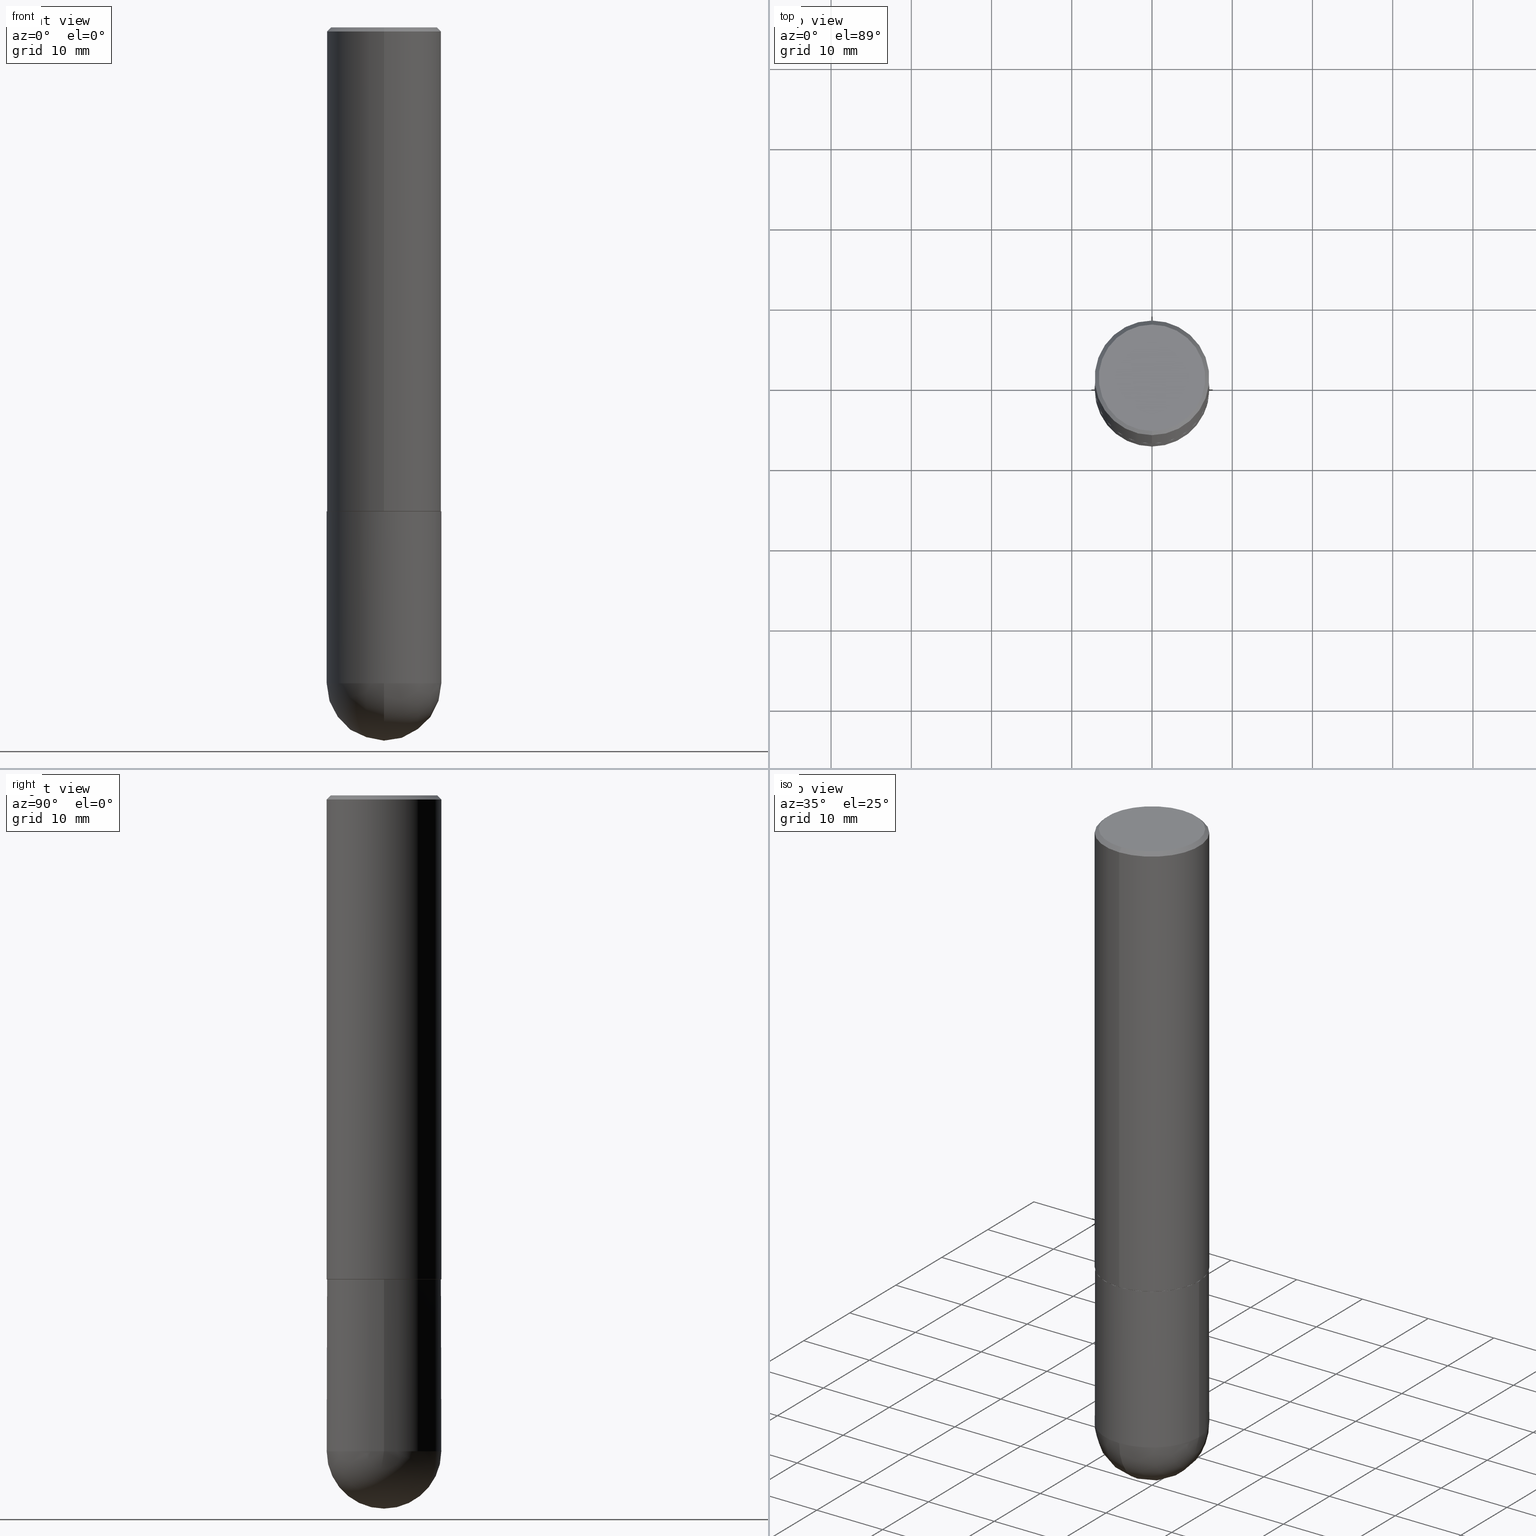
[diagram: canonical four-view strip — front | top / right | iso, engineering-drawing reading convention]
A machine part, canonical four-view strip (front | top / right | iso — engineering-drawing reading convention). The complete STEP part file that produces these views, byte-faithful:
ISO-10303-21;
HEADER;
FILE_DESCRIPTION (( 'STEP AP203' ),
    '1' );
FILE_NAME ('30937.STEP',
    '2024-02-21T16:46:13',
    ( '' ),
    ( '' ),
    'SwSTEP 2.0',
    'SolidWorks 2023',
    '' );
FILE_SCHEMA (( 'CONFIG_CONTROL_DESIGN' ));
ENDSEC;

DATA;
#1 = CARTESIAN_POINT ( 'NONE',  ( -1.963958253099205714E-15, -0.2812500000000085487, -2.373999999999998334 ) ) ;
#2 = VERTEX_POINT ( 'NONE', #383 ) ;
#3 = DIRECTION ( 'NONE',  ( -6.982962677686265133E-15, -1.000000000000000000, 3.885294924322504533E-15 ) ) ;
#4 = ORIENTED_EDGE ( 'NONE', *, *, #10, .T. ) ;
#5 = VERTEX_POINT ( 'NONE', #91 ) ;
#6 = FACE_OUTER_BOUND ( 'NONE', #216, .T. ) ;
#7 = CALENDAR_DATE ( 2024, 21, 2 ) ;
#8 = EDGE_CURVE ( 'NONE', #71, #2, #405, .T. ) ;
#9 = AXIS2_PLACEMENT_3D ( 'NONE', #369, #267, #172 ) ;
#10 = EDGE_CURVE ( 'NONE', #56, #35, #275, .T. ) ;
#11 = CALENDAR_DATE ( 2024, 21, 2 ) ;
#12 = CARTESIAN_POINT ( 'NONE',  ( 0.000000000000000000, 0.000000000000000000, 0.000000000000000000 ) ) ;
#13 = PERSON_AND_ORGANIZATION ( #332, #87 ) ;
#14 = PERSON_AND_ORGANIZATION ( #332, #87 ) ;
#15 = ORIENTED_EDGE ( 'NONE', *, *, #55, .F. ) ;
#16 = AXIS2_PLACEMENT_3D ( 'NONE', #408, #352, #119 ) ;
#17 = PLANE ( 'NONE',  #303 ) ;
#18 = DIRECTION ( 'NONE',  ( -2.445468806185136597E-29, 3.491481338843145583E-15, 1.000000000000000000 ) ) ;
#19 = APPROVAL_ROLE ( '' ) ;
#20 = CARTESIAN_POINT ( 'NONE',  ( 4.891942156115939858E-31, -6.981524113867461777E-17, -0.02000000000000006287 ) ) ;
#21 = ADVANCED_FACE ( 'NONE', ( #152 ), #223, .F. ) ;
#22 = AXIS2_PLACEMENT_3D ( 'NONE', #157, #284, #3 ) ;
#23 = ADVANCED_FACE ( 'NONE', ( #92 ), #89, .T. ) ;
#24 = ORIENTED_EDGE ( 'NONE', *, *, #254, .T. ) ;
#25 = DIRECTION ( 'NONE',  ( -2.445971078057962310E-29, 3.490762056933719721E-15, 1.000000000000000000 ) ) ;
#26 = CARTESIAN_POINT ( 'NONE',  ( 5.807988414689698296E-29, -8.292268179752468540E-15, -2.374999999999999556 ) ) ;
#27 = DIRECTION ( 'NONE',  ( -2.445971078057962310E-29, 3.490762056933719721E-15, 1.000000000000000000 ) ) ;
#28 = ORIENTED_EDGE ( 'NONE', *, *, #261, .F. ) ;
#29 = EDGE_LOOP ( 'NONE', ( #155, #104, #322, #98 ) ) ;
#30 = DIRECTION ( 'NONE',  ( -2.445971078057962310E-29, 3.490762056933719721E-15, 1.000000000000000000 ) ) ;
#31 = ADVANCED_FACE ( 'NONE', ( #311 ), #319, .T. ) ;
#32 = CIRCLE ( 'NONE', #136, 0.2812499999999999445 ) ;
#33 = ORIENTED_EDGE ( 'NONE', *, *, #8, .F. ) ;
#34 = ORIENTED_EDGE ( 'NONE', *, *, #194, .T. ) ;
#35 = VERTEX_POINT ( 'NONE', #349 ) ;
#36 = SECURITY_CLASSIFICATION_LEVEL ( 'unclassified' ) ;
#37 = ORIENTED_EDGE ( 'NONE', *, *, #186, .T. ) ;
#38 = DATE_AND_TIME ( #134, #353 ) ;
#39 = PERSON_AND_ORGANIZATION ( #332, #87 ) ;
#40 = CONICAL_SURFACE ( 'NONE', #103, 0.2802499999999999991, 0.7853981633973970977 ) ;
#41 = AXIS2_PLACEMENT_3D ( 'NONE', #246, #314, #343 ) ;
#42 = PRODUCT ( '30937', '30937', '', ( #169 ) ) ;
#43 = APPROVAL_STATUS ( 'not_yet_approved' ) ;
#44 = ADVANCED_BREP_SHAPE_REPRESENTATION ( '30937', ( #64, #344, #264 ), #323 ) ;
#45 = APPLICATION_PROTOCOL_DEFINITION ( 'international standard', 'config_control_design', 1994, #295 ) ;
#46 = ORIENTED_EDGE ( 'NONE', *, *, #171, .T. ) ;
#47 = DIRECTION ( 'NONE',  ( 6.982962677686265133E-15, 1.000000000000000000, 0.000000000000000000 ) ) ;
#48 = DATE_AND_TIME ( #7, #65 ) ;
#49 = DIRECTION ( 'NONE',  ( -6.982962677686265922E-15, -1.000000000000000000, 3.899158599342391639E-15 ) ) ;
#50 = AXIS2_PLACEMENT_3D ( 'NONE', #277, #309, #252 ) ;
#51 = DIRECTION ( 'NONE',  ( -2.445468806185136597E-29, 3.491481338843145583E-15, 1.000000000000000000 ) ) ;
#52 = CIRCLE ( 'NONE', #121, 0.2812500000000000555 ) ;
#53 = DIRECTION ( 'NONE',  ( -2.445468806185136597E-29, 3.491481338843145583E-15, 1.000000000000000000 ) ) ;
#54 = CARTESIAN_POINT ( 'NONE',  ( 5.809181310387659224E-29, -8.290559885217581626E-15, -2.374999999999999556 ) ) ;
#55 = EDGE_CURVE ( 'NONE', #100, #357, #412, .T. ) ;
#56 = VERTEX_POINT ( 'NONE', #214 ) ;
#57 = CARTESIAN_POINT ( 'NONE',  ( 1.963958253099340610E-15, 0.2812499999999886757, -3.218750000000000888 ) ) ;
#58 = DIRECTION ( 'NONE',  ( -2.445468806185136597E-29, 3.491481338843145583E-15, 1.000000000000000000 ) ) ;
#59 = CARTESIAN_POINT ( 'NONE',  ( 5.806735339309601077E-29, -8.287069123160647874E-15, -2.373999999999999222 ) ) ;
#60 = CARTESIAN_POINT ( 'NONE',  ( -1.860910081895526737E-15, -0.2612499999999998157, 1.009949462247405625E-15 ) ) ;
#61 = VERTEX_POINT ( 'NONE', #188 ) ;
#62 = DIRECTION ( 'NONE',  ( -2.445971078057961469E-29, 3.490762056933720116E-15, 1.000000000000000000 ) ) ;
#63 = DIRECTION ( 'NONE',  ( -2.445468806185136877E-29, 3.491481338843145188E-15, 1.000000000000000000 ) ) ;
#64 = MANIFOLD_SOLID_BREP ( 'Body-Move/Copy2[1]', #132 ) ;
#65 = LOCAL_TIME ( 11, 46, 13.00000000000000000, #292 ) ;
#66 = CARTESIAN_POINT ( 'NONE',  ( 8.240046819675677659E-29, -1.267714545847805119E-14, -3.500000000000000000 ) ) ;
#67 = CC_DESIGN_PERSON_AND_ORGANIZATION_ASSIGNMENT ( #360, #195, ( #137 ) ) ;
#68 = DIRECTION ( 'NONE',  ( 6.982962677686265922E-15, 1.000000000000000000, -3.885294924322502955E-15 ) ) ;
#69 = ORIENTED_EDGE ( 'NONE', *, *, #261, .T. ) ;
#70 = DIRECTION ( 'NONE',  ( -4.937700262164294818E-15, -0.7071067811865088260, 0.7071067811865862085 ) ) ;
#71 = VERTEX_POINT ( 'NONE', #66 ) ;
#72 = VERTEX_POINT ( 'NONE', #57 ) ;
#73 = CIRCLE ( 'NONE', #120, 0.2812500000000003331 ) ;
#74 = EDGE_CURVE ( 'NONE', #5, #164, #347, .T. ) ;
#75 = CLOSED_SHELL ( 'NONE', ( #158, #31, #318, #274, #101, #339, #209, #21 ) ) ;
#76 = VECTOR ( 'NONE', #63, 39.37007874015748143 ) ;
#77 = DIRECTION ( 'NONE',  ( -2.445971078057962310E-29, 3.490762056933719721E-15, 1.000000000000000000 ) ) ;
#78 = PERSON_AND_ORGANIZATION_ROLE ( 'classification_officer' ) ;
#79 = FACE_OUTER_BOUND ( 'NONE', #290, .T. ) ;
#80 = CARTESIAN_POINT ( 'NONE',  ( -1.929515061873242463E-15, -0.2812500000000000555, -0.01999999999999908101 ) ) ;
#81 = AXIS2_PLACEMENT_3D ( 'NONE', #391, #244, #378 ) ;
#82 = EDGE_CURVE ( 'NONE', #61, #210, #206, .T. ) ;
#83 = FACE_OUTER_BOUND ( 'NONE', #296, .T. ) ;
#84 = ORIENTED_EDGE ( 'NONE', *, *, #240, .T. ) ;
#85 = ORIENTED_EDGE ( 'NONE', *, *, #215, .F. ) ;
#86 = AXIS2_PLACEMENT_3D ( 'NONE', #54, #77, #201 ) ;
#87 = ORGANIZATION ( 'UNSPECIFIED', 'UNSPECIFIED', '' ) ;
#88 = CARTESIAN_POINT ( 'NONE',  ( 1.894128626322399214E-15, 0.2612499999999998157, -8.139737125004617927E-16 ) ) ;
#89 = SPHERICAL_SURFACE ( 'NONE', #173, 0.2812500000000003331 ) ;
#90 = EDGE_LOOP ( 'NONE', ( #390, #24, #46, #193 ) ) ;
#91 = CARTESIAN_POINT ( 'NONE',  ( -0.2812500000000000555, -7.766835425251639371E-15, -3.218749999999999556 ) ) ;
#92 = FACE_OUTER_BOUND ( 'NONE', #161, .T. ) ;
#93 = DESIGN_CONTEXT ( 'detailed design', #279, 'design' ) ;
#94 = CC_DESIGN_PERSON_AND_ORGANIZATION_ASSIGNMENT ( #300, #78, ( #232 ) ) ;
#95 = AXIS2_PLACEMENT_3D ( 'NONE', #59, #174, #217 ) ;
#96 = ORIENTED_EDGE ( 'NONE', *, *, #107, .T. ) ;
#97 = VERTEX_POINT ( 'NONE', #60 ) ;
#98 = ORIENTED_EDGE ( 'NONE', *, *, #171, .F. ) ;
#99 = LINE ( 'NONE', #128, #146 ) ;
#100 = VERTEX_POINT ( 'NONE', #181 ) ;
#101 = ADVANCED_FACE ( 'NONE', ( #251 ), #124, .T. ) ;
#102 = DIRECTION ( 'NONE',  ( 6.982962677686266711E-15, 1.000000000000000000, -3.490694658571003593E-15 ) ) ;
#103 = AXIS2_PLACEMENT_3D ( 'NONE', #243, #226, #320 ) ;
#104 = ORIENTED_EDGE ( 'NONE', *, *, #395, .T. ) ;
#105 = DIRECTION ( 'NONE',  ( 1.000000000000000000, 0.000000000000000000, 0.000000000000000000 ) ) ;
#106 = LENGTH_MEASURE_WITH_UNIT ( LENGTH_MEASURE( 0.02539999999999999897 ), #304 );
#107 = EDGE_CURVE ( 'NONE', #357, #164, #373, .T. ) ;
#108 = CARTESIAN_POINT ( 'NONE',  ( 7.871352719908407300E-29, -1.123820555940137375E-14, -3.218749999999999556 ) ) ;
#109 = COORDINATED_UNIVERSAL_TIME_OFFSET ( 5, 0, .BEHIND. ) ;
#110 = ORIENTED_EDGE ( 'NONE', *, *, #288, .F. ) ;
#111 = DIRECTION ( 'NONE',  ( -2.445468806185136597E-29, 3.491481338843145583E-15, 1.000000000000000000 ) ) ;
#112 = DATE_AND_TIME ( #402, #126 ) ;
#113 = DATE_AND_TIME ( #145, #248 ) ;
#114 = CARTESIAN_POINT ( 'NONE',  ( 7.540232941994521053E-29, -1.171238792754142562E-14, -3.218749999999999556 ) ) ;
#115 = CIRCLE ( 'NONE', #305, 0.2812500000000000555 ) ;
#116 = ORIENTED_EDGE ( 'NONE', *, *, #107, .F. ) ;
#117 = CC_DESIGN_DATE_AND_TIME_ASSIGNMENT ( #48, #229, ( #232 ) ) ;
#118 = FACE_OUTER_BOUND ( 'NONE', #29, .T. ) ;
#119 = DIRECTION ( 'NONE',  ( 6.982962677686265922E-15, 1.000000000000000000, -3.490762056933720116E-15 ) ) ;
#120 = AXIS2_PLACEMENT_3D ( 'NONE', #114, #175, #47 ) ;
#121 = AXIS2_PLACEMENT_3D ( 'NONE', #108, #260, #205 ) ;
#122 = CYLINDRICAL_SURFACE ( 'NONE', #197, 0.2812500000000000555 ) ;
#123 = CARTESIAN_POINT ( 'NONE',  ( 0.2812500000000000555, -1.963958253099262907E-15, 1.371424718192607012E-29 ) ) ;
#124 = CYLINDRICAL_SURFACE ( 'NONE', #191, 0.2812500000000001110 ) ;
#125 = DIRECTION ( 'NONE',  ( -2.445971078057962310E-29, 3.490762056933720116E-15, 1.000000000000000000 ) ) ;
#126 = LOCAL_TIME ( 11, 46, 13.00000000000000000, #109 ) ;
#127 = EDGE_LOOP ( 'NONE', ( #333, #4, #282, #348 ) ) ;
#128 = CARTESIAN_POINT ( 'NONE',  ( -1.956975290421518122E-15, -0.2802500000000083258, -2.374999999999998668 ) ) ;
#129 = ORIENTED_EDGE ( 'NONE', *, *, #368, .T. ) ;
#130 = ORIENTED_EDGE ( 'NONE', *, *, #139, .T. ) ;
#131 = CARTESIAN_POINT ( 'NONE',  ( 4.891942156115939858E-31, -6.981524113867461777E-17, -0.02000000000000006287 ) ) ;
#132 = CLOSED_SHELL ( 'NONE', ( #256, #316, #23, #245, #376 ) ) ;
#133 = EDGE_LOOP ( 'NONE', ( #406, #355 ) ) ;
#134 = CALENDAR_DATE ( 2024, 21, 2 ) ;
#135 = CARTESIAN_POINT ( 'NONE',  ( 0.2812500000000000000, -1.025622643285173184E-14, -2.374999999999999556 ) ) ;
#136 = AXIS2_PLACEMENT_3D ( 'NONE', #20, #372, #266 ) ;
#137 = PRODUCT_DEFINITION_FORMATION_WITH_SPECIFIED_SOURCE ( 'ANY', '', #42, .NOT_KNOWN. ) ;
#138 = EDGE_LOOP ( 'NONE', ( #110, #385, #361, #34 ) ) ;
#139 = EDGE_CURVE ( 'NONE', #97, #270, #230, .T. ) ;
#140 = PERSON_AND_ORGANIZATION_ROLE ( 'creator' ) ;
#141 = LOCAL_TIME ( 11, 46, 13.00000000000000000, #294 ) ;
#142 = FACE_OUTER_BOUND ( 'NONE', #133, .T. ) ;
#143 = EDGE_CURVE ( 'NONE', #270, #97, #220, .T. ) ;
#144 = CARTESIAN_POINT ( 'NONE',  ( 5.809181310387659224E-29, -8.290559885217581626E-15, -2.374999999999999556 ) ) ;
#145 = CALENDAR_DATE ( 2024, 21, 2 ) ;
#146 = VECTOR ( 'NONE', #70, 39.37007874015748143 ) ;
#147 = CC_DESIGN_APPROVAL ( #176, ( #283 ) ) ;
#148 = DIMENSIONAL_EXPONENTS ( 1.000000000000000000, 0.000000000000000000, 0.000000000000000000, 0.000000000000000000, 0.000000000000000000, 0.000000000000000000, 0.000000000000000000 ) ;
#149 = VERTEX_POINT ( 'NONE', #1 ) ;
#150 = CARTESIAN_POINT ( 'NONE',  ( 5.807988414689698296E-29, -8.292268179752468540E-15, -2.374999999999999556 ) ) ;
#151 = CARTESIAN_POINT ( 'NONE',  ( -1.929515061873242463E-15, -0.2812500000000000555, -0.01999999999999908101 ) ) ;
#152 = FACE_OUTER_BOUND ( 'NONE', #351, .T. ) ;
#153 = ORIENTED_EDGE ( 'NONE', *, *, #143, .T. ) ;
#154 = DIRECTION ( 'NONE',  ( -2.445468806185136597E-29, 3.491481338843145583E-15, 1.000000000000000000 ) ) ;
#155 = ORIENTED_EDGE ( 'NONE', *, *, #82, .T. ) ;
#156 = DIRECTION ( 'NONE',  ( -1.000000000000000000, 6.982962677686265922E-15, -4.883557194083112901E-29 ) ) ;
#157 = CARTESIAN_POINT ( 'NONE',  ( 5.806735339309601077E-29, -8.287069123160647874E-15, -2.373999999999999222 ) ) ;
#158 = ADVANCED_FACE ( 'NONE', ( #118 ), #40, .T. ) ;
#159 = CIRCLE ( 'NONE', #278, 0.2812500000000000555 ) ;
#160 = CONICAL_SURFACE ( 'NONE', #207, 0.2802499999999999991, 0.7853981633973970977 ) ;
#161 = EDGE_LOOP ( 'NONE', ( #33, #69, #285, #227 ) ) ;
#162 = ORIENTED_EDGE ( 'NONE', *, *, #194, .F. ) ;
#163 = SHAPE_DEFINITION_REPRESENTATION ( #370, #44 ) ;
#164 = VERTEX_POINT ( 'NONE', #255 ) ;
#165 =( CONVERSION_BASED_UNIT ( 'INCH', #106 ) LENGTH_UNIT ( ) NAMED_UNIT ( #148 ) );
#166 = CONICAL_SURFACE ( 'NONE', #258, 0.2812499999999999445, 0.7853981633974473908 ) ;
#167 = EDGE_CURVE ( 'NONE', #149, #312, #356, .T. ) ;
#168 = APPROVAL_DATE_TIME ( #301, #176 ) ;
#169 = MECHANICAL_CONTEXT ( 'NONE', #295, 'mechanical' ) ;
#170 = ORIENTED_EDGE ( 'NONE', *, *, #139, .F. ) ;
#171 = EDGE_CURVE ( 'NONE', #61, #149, #99, .T. ) ;
#172 = DIRECTION ( 'NONE',  ( 6.982962677686266711E-15, 1.000000000000000000, -3.490694658571003593E-15 ) ) ;
#173 = AXIS2_PLACEMENT_3D ( 'NONE', #354, #156, #68 ) ;
#174 = DIRECTION ( 'NONE',  ( -2.445971078057962310E-29, 3.490762056933719721E-15, 1.000000000000000000 ) ) ;
#175 = DIRECTION ( 'NONE',  ( 1.000000000000000000, -6.982962677686265922E-15, 4.883557194083112340E-29 ) ) ;
#176 = APPROVAL ( #43, 'UNSPECIFIED' ) ;
#177 = APPROVAL_PERSON_ORGANIZATION ( #394, #176, #331 ) ;
#178 = CARTESIAN_POINT ( 'NONE',  ( -2.396755079408748656E-45, 3.420523556478848100E-31, 9.798787487347194070E-17 ) ) ;
#179 = DIRECTION ( 'NONE',  ( 1.000000000000000000, -6.982962677686268288E-15, 0.000000000000000000 ) ) ;
#180 = DIRECTION ( 'NONE',  ( -2.445971078057962310E-29, 3.490762056933719721E-15, 1.000000000000000000 ) ) ;
#181 = CARTESIAN_POINT ( 'NONE',  ( 0.2812500000000000555, -1.172919512267618602E-14, -3.218749999999999556 ) ) ;
#182 = PLANE ( 'NONE',  #386 ) ;
#183 = ORIENTED_EDGE ( 'NONE', *, *, #250, .T. ) ;
#184 = CIRCLE ( 'NONE', #253, 0.2812499999999999445 ) ;
#185 = EDGE_LOOP ( 'NONE', ( #28, #272, #190, #375 ) ) ;
#186 = EDGE_CURVE ( 'NONE', #56, #149, #271, .T. ) ;
#187 = CC_DESIGN_DATE_AND_TIME_ASSIGNMENT ( #112, #298, ( #283 ) ) ;
#188 = CARTESIAN_POINT ( 'NONE',  ( -1.956975290421518122E-15, -0.2802500000000083258, -2.374999999999998668 ) ) ;
#189 = DIRECTION ( 'NONE',  ( -2.445971078057962310E-29, 3.490762056933720116E-15, 1.000000000000000000 ) ) ;
#190 = ORIENTED_EDGE ( 'NONE', *, *, #250, .F. ) ;
#191 = AXIS2_PLACEMENT_3D ( 'NONE', #381, #387, #273 ) ;
#192 = CC_DESIGN_APPROVAL ( #407, ( #232 ) ) ;
#193 = ORIENTED_EDGE ( 'NONE', *, *, #186, .F. ) ;
#194 = EDGE_CURVE ( 'NONE', #35, #312, #184, .T. ) ;
#195 = PERSON_AND_ORGANIZATION_ROLE ( 'design_supplier' ) ;
#196 = DIRECTION ( 'NONE',  ( 0.000000000000000000, 0.000000000000000000, 1.000000000000000000 ) ) ;
#197 = AXIS2_PLACEMENT_3D ( 'NONE', #401, #111, #330 ) ;
#198 = PERSON_AND_ORGANIZATION_ROLE ( 'design_owner' ) ;
#199 =( NAMED_UNIT ( * ) PLANE_ANGLE_UNIT ( ) SI_UNIT ( $, .RADIAN. ) );
#200 = ORIENTED_EDGE ( 'NONE', *, *, #167, .T. ) ;
#201 = DIRECTION ( 'NONE',  ( -6.982962677686265922E-15, -1.000000000000000000, 3.899158599342391639E-15 ) ) ;
#202 = APPROVAL_DATE_TIME ( #38, #407 ) ;
#203 = DIRECTION ( 'NONE',  ( 5.024295867787803643E-15, 0.7071067811865135999, 0.7071067811865812125 ) ) ;
#204 = DIRECTION ( 'NONE',  ( -4.851104656540959542E-15, -0.7071067811865493491, -0.7071067811865456854 ) ) ;
#205 = DIRECTION ( 'NONE',  ( 1.000000000000000000, -6.982962677686268288E-15, 0.000000000000000000 ) ) ;
#206 = CIRCLE ( 'NONE', #41, 0.2802499999999999991 ) ;
#207 = AXIS2_PLACEMENT_3D ( 'NONE', #367, #325, #49 ) ;
#208 = FACE_OUTER_BOUND ( 'NONE', #242, .T. ) ;
#209 = ADVANCED_FACE ( 'NONE', ( #142 ), #17, .F. ) ;
#210 = VERTEX_POINT ( 'NONE', #263 ) ;
#211 = DIRECTION ( 'NONE',  ( -6.982962677686266711E-15, -1.000000000000000000, 3.490762056933719721E-15 ) ) ;
#212 = AXIS2_PLACEMENT_3D ( 'NONE', #218, #25, #211 ) ;
#213 = AXIS2_PLACEMENT_3D ( 'NONE', #12, #259, #397 ) ;
#214 = CARTESIAN_POINT ( 'NONE',  ( 1.998401444325312144E-15, 0.2812499999999919509, -2.374000000000000554 ) ) ;
#215 = EDGE_CURVE ( 'NONE', #270, #35, #346, .T. ) ;
#216 = EDGE_LOOP ( 'NONE', ( #170, #265, #84, #85 ) ) ;
#217 = DIRECTION ( 'NONE',  ( -6.982962677686265133E-15, -1.000000000000000000, 3.885294924322504533E-15 ) ) ;
#218 = CARTESIAN_POINT ( 'NONE',  ( 0.000000000000000000, 0.000000000000000000, 0.000000000000000000 ) ) ;
#219 = DIRECTION ( 'NONE',  ( -6.982962677686266711E-15, -1.000000000000000000, 3.490762056933720116E-15 ) ) ;
#220 = CIRCLE ( 'NONE', #364, 0.2612499999999998157 ) ;
#221 = VECTOR ( 'NONE', #249, 39.37007874015748143 ) ;
#222 = ORIENTED_EDGE ( 'NONE', *, *, #269, .F. ) ;
#223 = PLANE ( 'NONE',  #16 ) ;
#224 = APPROVAL ( #268, 'UNSPECIFIED' ) ;
#225 = ORIENTED_EDGE ( 'NONE', *, *, #321, .T. ) ;
#226 = DIRECTION ( 'NONE',  ( -2.445971078057962310E-29, 3.490762056933719721E-15, 1.000000000000000000 ) ) ;
#227 = ORIENTED_EDGE ( 'NONE', *, *, #350, .F. ) ;
#228 = ORIENTED_EDGE ( 'NONE', *, *, #74, .F. ) ;
#229 = DATE_TIME_ROLE ( 'classification_date' ) ;
#230 = CIRCLE ( 'NONE', #247, 0.2612499999999998157 ) ;
#231 = EDGE_CURVE ( 'NONE', #149, #56, #308, .T. ) ;
#232 = SECURITY_CLASSIFICATION ( '', '', #36 ) ;
#233 = DIRECTION ( 'NONE',  ( 1.000000000000000000, -6.982962677686268288E-15, 0.000000000000000000 ) ) ;
#234 = ORIENTED_EDGE ( 'NONE', *, *, #74, .T. ) ;
#235 = DIRECTION ( 'NONE',  ( -6.982962677686266711E-15, -1.000000000000000000, 3.490694658571003593E-15 ) ) ;
#236 = CARTESIAN_POINT ( 'NONE',  ( 1.991296016967738351E-15, 0.2802499999999917280, -2.375000000000000888 ) ) ;
#237 = CARTESIAN_POINT ( 'NONE',  ( 1.963958253099262512E-15, 0.2812499999999998890, -0.02000000000000104472 ) ) ;
#238 = APPROVAL_DATE_TIME ( #113, #224 ) ;
#239 = AXIS2_PLACEMENT_3D ( 'NONE', #26, #51, #241 ) ;
#240 = EDGE_CURVE ( 'NONE', #312, #35, #32, .T. ) ;
#241 = DIRECTION ( 'NONE',  ( 1.000000000000000000, -6.982962677686269866E-15, 0.000000000000000000 ) ) ;
#242 = EDGE_LOOP ( 'NONE', ( #129, #234, #116, #15, #225 ) ) ;
#243 = CARTESIAN_POINT ( 'NONE',  ( 5.809181310387659224E-29, -8.290559885217581626E-15, -2.374999999999999556 ) ) ;
#244 = DIRECTION ( 'NONE',  ( -1.000000000000000000, 6.982962677686265922E-15, -4.883557194083112901E-29 ) ) ;
#245 = ADVANCED_FACE ( 'NONE', ( #83 ), #182, .F. ) ;
#246 = CARTESIAN_POINT ( 'NONE',  ( 5.809181310387659224E-29, -8.290559885217581626E-15, -2.374999999999999556 ) ) ;
#247 = AXIS2_PLACEMENT_3D ( 'NONE', #178, #27, #384 ) ;
#248 = LOCAL_TIME ( 11, 46, 13.00000000000000000, #403 ) ;
#249 = DIRECTION ( 'NONE',  ( -2.445468806185136877E-29, 3.491481338843145188E-15, 1.000000000000000000 ) ) ;
#250 = EDGE_CURVE ( 'NONE', #5, #2, #159, .T. ) ;
#251 = FACE_OUTER_BOUND ( 'NONE', #388, .T. ) ;
#252 = DIRECTION ( 'NONE',  ( -7.105427357601001859E-15, -1.000000000000000000, 0.000000000000000000 ) ) ;
#253 = AXIS2_PLACEMENT_3D ( 'NONE', #366, #180, #235 ) ;
#254 = EDGE_CURVE ( 'NONE', #210, #61, #335, .T. ) ;
#255 = CARTESIAN_POINT ( 'NONE',  ( -0.2812500000000000000, -7.766835425251637793E-15, -2.374999999999999556 ) ) ;
#256 = ADVANCED_FACE ( 'NONE', ( #208 ), #122, .T. ) ;
#257 = CONICAL_SURFACE ( 'NONE', #9, 0.2812499999999999445, 0.7853981633974473908 ) ;
#258 = AXIS2_PLACEMENT_3D ( 'NONE', #131, #392, #102 ) ;
#259 = DIRECTION ( 'NONE',  ( -2.445468806185136597E-29, 3.491481338843145583E-15, 1.000000000000000000 ) ) ;
#260 = DIRECTION ( 'NONE',  ( -2.445468806185136597E-29, 3.491481338843145583E-15, 1.000000000000000000 ) ) ;
#261 = EDGE_CURVE ( 'NONE', #71, #72, #73, .T. ) ;
#262 = DIRECTION ( 'NONE',  ( 1.000000000000000000, -6.982962677686268288E-15, 0.000000000000000000 ) ) ;
#263 = CARTESIAN_POINT ( 'NONE',  ( 1.994848730646540039E-15, 0.2802499999999917280, -2.375000000000000888 ) ) ;
#264 = AXIS2_PLACEMENT_3D ( 'NONE', #329, #196, #105 ) ;
#265 = ORIENTED_EDGE ( 'NONE', *, *, #288, .T. ) ;
#266 = DIRECTION ( 'NONE',  ( -6.982962677686266711E-15, -1.000000000000000000, 3.490694658571003593E-15 ) ) ;
#267 = DIRECTION ( 'NONE',  ( 2.445971078057962310E-29, -3.490762056933719721E-15, -1.000000000000000000 ) ) ;
#268 = APPROVAL_STATUS ( 'not_yet_approved' ) ;
#269 = EDGE_CURVE ( 'NONE', #164, #357, #358, .T. ) ;
#270 = VERTEX_POINT ( 'NONE', #88 ) ;
#271 = CIRCLE ( 'NONE', #22, 0.2812500000000002220 ) ;
#272 = ORIENTED_EDGE ( 'NONE', *, *, #8, .T. ) ;
#273 = DIRECTION ( 'NONE',  ( -6.982962677686266711E-15, -1.000000000000000000, 3.490762056933719721E-15 ) ) ;
#274 = ADVANCED_FACE ( 'NONE', ( #310 ), #257, .T. ) ;
#275 = LINE ( 'NONE', #377, #315 ) ;
#276 = FACE_OUTER_BOUND ( 'NONE', #90, .T. ) ;
#277 = CARTESIAN_POINT ( 'NONE',  ( 7.540232941994521053E-29, -1.171238792754142562E-14, -3.218749999999999556 ) ) ;
#278 = AXIS2_PLACEMENT_3D ( 'NONE', #313, #18, #233 ) ;
#279 = APPLICATION_CONTEXT ( 'configuration controlled 3d designs of mechanical parts and assemblies' ) ;
#280 = DIRECTION ( 'NONE',  ( 1.000000000000000000, -6.982962677686269866E-15, 0.000000000000000000 ) ) ;
#281 = ORIENTED_EDGE ( 'NONE', *, *, #350, .T. ) ;
#282 = ORIENTED_EDGE ( 'NONE', *, *, #240, .F. ) ;
#283 = PRODUCT_DEFINITION ( 'UNKNOWN', '', #137, #93 ) ;
#284 = DIRECTION ( 'NONE',  ( -2.445971078057962310E-29, 3.490762056933719721E-15, 1.000000000000000000 ) ) ;
#285 = ORIENTED_EDGE ( 'NONE', *, *, #321, .F. ) ;
#286 = UNCERTAINTY_MEASURE_WITH_UNIT (LENGTH_MEASURE( 1.000000000000000082E-05 ), #165, 'distance_accuracy_value', 'NONE');
#287 = ORIENTED_EDGE ( 'NONE', *, *, #10, .F. ) ;
#288 = EDGE_CURVE ( 'NONE', #97, #312, #302, .T. ) ;
#289 = PERSON_AND_ORGANIZATION_ROLE ( 'creator' ) ;
#290 = EDGE_LOOP ( 'NONE', ( #228, #183, #281, #340, #222 ) ) ;
#291 = CIRCLE ( 'NONE', #342, 0.2812500000000000555 ) ;
#292 = COORDINATED_UNIVERSAL_TIME_OFFSET ( 5, 0, .BEHIND. ) ;
#293 = CC_DESIGN_APPROVAL ( #224, ( #137 ) ) ;
#294 = COORDINATED_UNIVERSAL_TIME_OFFSET ( 5, 0, .BEHIND. ) ;
#295 = APPLICATION_CONTEXT ( 'configuration controlled 3d designs of mechanical parts and assemblies' ) ;
#296 = EDGE_LOOP ( 'NONE', ( #96, #338 ) ) ;
#297 = APPROVAL_ROLE ( '' ) ;
#298 = DATE_TIME_ROLE ( 'creation_date' ) ;
#299 = CC_DESIGN_PERSON_AND_ORGANIZATION_ASSIGNMENT ( #14, #140, ( #283 ) ) ;
#300 = PERSON_AND_ORGANIZATION ( #332, #87 ) ;
#301 = DATE_AND_TIME ( #11, #141 ) ;
#302 = LINE ( 'NONE', #80, #393 ) ;
#303 = AXIS2_PLACEMENT_3D ( 'NONE', #144, #62, #334 ) ;
#304 =( LENGTH_UNIT ( ) NAMED_UNIT ( * ) SI_UNIT ( $, .METRE. ) );
#305 = AXIS2_PLACEMENT_3D ( 'NONE', #365, #53, #262 ) ;
#306 = CC_DESIGN_PERSON_AND_ORGANIZATION_ASSIGNMENT ( #13, #289, ( #137 ) ) ;
#307 = DIRECTION ( 'NONE',  ( 2.438088387897960049E-29, -3.491481338843145188E-15, -1.000000000000000000 ) ) ;
#308 = CIRCLE ( 'NONE', #95, 0.2812500000000002220 ) ;
#309 = DIRECTION ( 'NONE',  ( -1.000000000000000000, 7.105427357601001070E-15, -4.926315508542082329E-29 ) ) ;
#310 = FACE_OUTER_BOUND ( 'NONE', #138, .T. ) ;
#311 = FACE_OUTER_BOUND ( 'NONE', #127, .T. ) ;
#312 = VERTEX_POINT ( 'NONE', #151 ) ;
#313 = CARTESIAN_POINT ( 'NONE',  ( 7.871352719908407300E-29, -1.123820555940137375E-14, -3.218749999999999556 ) ) ;
#314 = DIRECTION ( 'NONE',  ( -2.445971078057962310E-29, 3.490762056933719721E-15, 1.000000000000000000 ) ) ;
#315 = VECTOR ( 'NONE', #125, 39.37007874015748143 ) ;
#316 = ADVANCED_FACE ( 'NONE', ( #411 ), #382, .T. ) ;
#317 = CARTESIAN_POINT ( 'NONE',  ( -0.2812500000000000555, 1.998401444325282167E-15, -1.383450494134192269E-29 ) ) ;
#318 = ADVANCED_FACE ( 'NONE', ( #6 ), #166, .T. ) ;
#319 = CYLINDRICAL_SURFACE ( 'NONE', #212, 0.2812500000000001110 ) ;
#320 = DIRECTION ( 'NONE',  ( -6.982962677686265922E-15, -1.000000000000000000, 3.899158599342391639E-15 ) ) ;
#321 = EDGE_CURVE ( 'NONE', #100, #72, #291, .T. ) ;
#322 = ORIENTED_EDGE ( 'NONE', *, *, #231, .F. ) ;
#323 =( GEOMETRIC_REPRESENTATION_CONTEXT ( 3 ) GLOBAL_UNCERTAINTY_ASSIGNED_CONTEXT ( ( #286 ) ) GLOBAL_UNIT_ASSIGNED_CONTEXT ( ( #165, #199, #363 ) ) REPRESENTATION_CONTEXT ( 'NONE', 'WORKASPACE' ) );
#324 = APPROVAL_STATUS ( 'not_yet_approved' ) ;
#325 = DIRECTION ( 'NONE',  ( -2.445971078057962310E-29, 3.490762056933719721E-15, 1.000000000000000000 ) ) ;
#326 = VECTOR ( 'NONE', #189, 39.37007874015748143 ) ;
#327 = APPLICATION_PROTOCOL_DEFINITION ( 'international standard', 'config_control_design', 1994, #279 ) ;
#328 = PRODUCT_RELATED_PRODUCT_CATEGORY ( 'detail', '', ( #42 ) ) ;
#329 = CARTESIAN_POINT ( 'NONE',  ( 0.000000000000000000, 0.000000000000000000, 0.000000000000000000 ) ) ;
#330 = DIRECTION ( 'NONE',  ( 1.000000000000000000, -6.982962677686266711E-15, 4.876176775795935232E-29 ) ) ;
#331 = APPROVAL_ROLE ( '' ) ;
#332 = PERSON ( 'UNSPECIFIED', 'UNSPECIFIED', 'UNSPECIFIED', ('UNSPECIFIED'), ('UNSPECIFIED'), ('UNSPECIFIED') ) ;
#333 = ORIENTED_EDGE ( 'NONE', *, *, #231, .T. ) ;
#334 = DIRECTION ( 'NONE',  ( -6.982962677686265922E-15, -1.000000000000000000, 3.490762056933720116E-15 ) ) ;
#335 = CIRCLE ( 'NONE', #86, 0.2802499999999999991 ) ;
#336 = CYLINDRICAL_SURFACE ( 'NONE', #213, 0.2812500000000000555 ) ;
#337 = DIRECTION ( 'NONE',  ( -1.000000000000000000, 6.982962677686265922E-15, -4.876176775795935793E-29 ) ) ;
#338 = ORIENTED_EDGE ( 'NONE', *, *, #269, .T. ) ;
#339 = ADVANCED_FACE ( 'NONE', ( #276 ), #160, .T. ) ;
#340 = ORIENTED_EDGE ( 'NONE', *, *, #55, .T. ) ;
#341 = VECTOR ( 'NONE', #374, 39.37007874015748143 ) ;
#342 = AXIS2_PLACEMENT_3D ( 'NONE', #345, #58, #179 ) ;
#343 = DIRECTION ( 'NONE',  ( -6.982962677686265922E-15, -1.000000000000000000, 3.899158599342391639E-15 ) ) ;
#344 = MANIFOLD_SOLID_BREP ( 'Body-Move/Copy2[2]', #75 ) ;
#345 = CARTESIAN_POINT ( 'NONE',  ( 7.871352719908407300E-29, -1.123820555940137375E-14, -3.218749999999999556 ) ) ;
#346 = LINE ( 'NONE', #237, #341 ) ;
#347 = LINE ( 'NONE', #317, #221 ) ;
#348 = ORIENTED_EDGE ( 'NONE', *, *, #167, .F. ) ;
#349 = CARTESIAN_POINT ( 'NONE',  ( 1.963958253099262512E-15, 0.2812499999999998890, -0.02000000000000104472 ) ) ;
#350 = EDGE_CURVE ( 'NONE', #2, #100, #52, .T. ) ;
#351 = EDGE_LOOP ( 'NONE', ( #153, #130 ) ) ;
#352 = DIRECTION ( 'NONE',  ( 2.445971078057961469E-29, -3.490762056933720116E-15, -1.000000000000000000 ) ) ;
#353 = LOCAL_TIME ( 11, 46, 13.00000000000000000, #396 ) ;
#354 = CARTESIAN_POINT ( 'NONE',  ( 7.540232941994521053E-29, -1.171238792754142562E-14, -3.218749999999999556 ) ) ;
#355 = ORIENTED_EDGE ( 'NONE', *, *, #254, .F. ) ;
#356 = LINE ( 'NONE', #389, #326 ) ;
#357 = VERTEX_POINT ( 'NONE', #135 ) ;
#358 = CIRCLE ( 'NONE', #239, 0.2812500000000000000 ) ;
#359 = APPROVAL_PERSON_ORGANIZATION ( #398, #407, #297 ) ;
#360 = PERSON_AND_ORGANIZATION ( #332, #87 ) ;
#361 = ORIENTED_EDGE ( 'NONE', *, *, #215, .T. ) ;
#362 = CC_DESIGN_PERSON_AND_ORGANIZATION_ASSIGNMENT ( #39, #198, ( #42 ) ) ;
#363 =( NAMED_UNIT ( * ) SI_UNIT ( $, .STERADIAN. ) SOLID_ANGLE_UNIT ( ) );
#364 = AXIS2_PLACEMENT_3D ( 'NONE', #409, #30, #219 ) ;
#365 = CARTESIAN_POINT ( 'NONE',  ( 7.871352719908407300E-29, -1.123820555940137375E-14, -3.218749999999999556 ) ) ;
#366 = CARTESIAN_POINT ( 'NONE',  ( 4.891942156115939858E-31, -6.981524113867461777E-17, -0.02000000000000006287 ) ) ;
#367 = CARTESIAN_POINT ( 'NONE',  ( 5.809181310387659224E-29, -8.290559885217581626E-15, -2.374999999999999556 ) ) ;
#368 = EDGE_CURVE ( 'NONE', #72, #5, #115, .T. ) ;
#369 = CARTESIAN_POINT ( 'NONE',  ( 4.891942156115939858E-31, -6.981524113867461777E-17, -0.02000000000000006287 ) ) ;
#370 = PRODUCT_DEFINITION_SHAPE ( 'NONE', 'NONE',  #283 ) ;
#371 = PERSON_AND_ORGANIZATION ( #332, #87 ) ;
#372 = DIRECTION ( 'NONE',  ( -2.445971078057962310E-29, 3.490762056933719721E-15, 1.000000000000000000 ) ) ;
#373 = CIRCLE ( 'NONE', #379, 0.2812500000000000000 ) ;
#374 = DIRECTION ( 'NONE',  ( 4.937700262164543309E-15, 0.7071067811865444641, -0.7071067811865505703 ) ) ;
#375 = ORIENTED_EDGE ( 'NONE', *, *, #368, .F. ) ;
#376 = ADVANCED_FACE ( 'NONE', ( #79 ), #336, .T. ) ;
#377 = CARTESIAN_POINT ( 'NONE',  ( 1.998401444325282167E-15, 0.2812500000000001110, -9.817768285126090044E-16 ) ) ;
#378 = DIRECTION ( 'NONE',  ( 6.982962677686265922E-15, 1.000000000000000000, -3.885294924322502955E-15 ) ) ;
#379 = AXIS2_PLACEMENT_3D ( 'NONE', #150, #154, #280 ) ;
#380 = APPROVAL_PERSON_ORGANIZATION ( #371, #224, #19 ) ;
#381 = CARTESIAN_POINT ( 'NONE',  ( 0.000000000000000000, 0.000000000000000000, 0.000000000000000000 ) ) ;
#382 = SPHERICAL_SURFACE ( 'NONE', #81, 0.2812500000000003331 ) ;
#383 = CARTESIAN_POINT ( 'NONE',  ( -1.998401444325206042E-15, -0.2812500000000116573, -3.218749999999998668 ) ) ;
#384 = DIRECTION ( 'NONE',  ( -6.982962677686266711E-15, -1.000000000000000000, 3.490762056933720116E-15 ) ) ;
#385 = ORIENTED_EDGE ( 'NONE', *, *, #143, .F. ) ;
#386 = AXIS2_PLACEMENT_3D ( 'NONE', #404, #307, #337 ) ;
#387 = DIRECTION ( 'NONE',  ( -2.445971078057962310E-29, 3.490762056933719721E-15, 1.000000000000000000 ) ) ;
#388 = EDGE_LOOP ( 'NONE', ( #287, #37, #200, #162 ) ) ;
#389 = CARTESIAN_POINT ( 'NONE',  ( -1.963958253099263301E-15, -0.2812500000000001110, 9.817768285126090044E-16 ) ) ;
#390 = ORIENTED_EDGE ( 'NONE', *, *, #395, .F. ) ;
#391 = CARTESIAN_POINT ( 'NONE',  ( 7.540232941994521053E-29, -1.171238792754142562E-14, -3.218749999999999556 ) ) ;
#392 = DIRECTION ( 'NONE',  ( 2.445971078057962310E-29, -3.490762056933719721E-15, -1.000000000000000000 ) ) ;
#393 = VECTOR ( 'NONE', #204, 39.37007874015748143 ) ;
#394 = PERSON_AND_ORGANIZATION ( #332, #87 ) ;
#395 = EDGE_CURVE ( 'NONE', #210, #56, #399, .T. ) ;
#396 = COORDINATED_UNIVERSAL_TIME_OFFSET ( 5, 0, .BEHIND. ) ;
#397 = DIRECTION ( 'NONE',  ( 1.000000000000000000, -6.982962677686266711E-15, 4.876176775795935232E-29 ) ) ;
#398 = PERSON_AND_ORGANIZATION ( #332, #87 ) ;
#399 = LINE ( 'NONE', #236, #400 ) ;
#400 = VECTOR ( 'NONE', #203, 39.37007874015748854 ) ;
#401 = CARTESIAN_POINT ( 'NONE',  ( 0.000000000000000000, 0.000000000000000000, 0.000000000000000000 ) ) ;
#402 = CALENDAR_DATE ( 2024, 21, 2 ) ;
#403 = COORDINATED_UNIVERSAL_TIME_OFFSET ( 5, 0, .BEHIND. ) ;
#404 = CARTESIAN_POINT ( 'NONE',  ( 1.963958253099320494E-15, 0.2812499999999917288, -2.375000000000000444 ) ) ;
#405 = CIRCLE ( 'NONE', #50, 0.2812500000000003331 ) ;
#406 = ORIENTED_EDGE ( 'NONE', *, *, #82, .F. ) ;
#407 = APPROVAL ( #324, 'UNSPECIFIED' ) ;
#408 = CARTESIAN_POINT ( 'NONE',  ( 1.824298999545535916E-15, 0.2612499999999998157, -8.629676499371978247E-16 ) ) ;
#409 = CARTESIAN_POINT ( 'NONE',  ( -2.396755079408748656E-45, 3.420523556478848100E-31, 9.798787487347194070E-17 ) ) ;
#410 = CC_DESIGN_SECURITY_CLASSIFICATION ( #232, ( #137 ) ) ;
#411 = FACE_OUTER_BOUND ( 'NONE', #185, .T. ) ;
#412 = LINE ( 'NONE', #123, #76 ) ;
ENDSEC;
END-ISO-10303-21;
